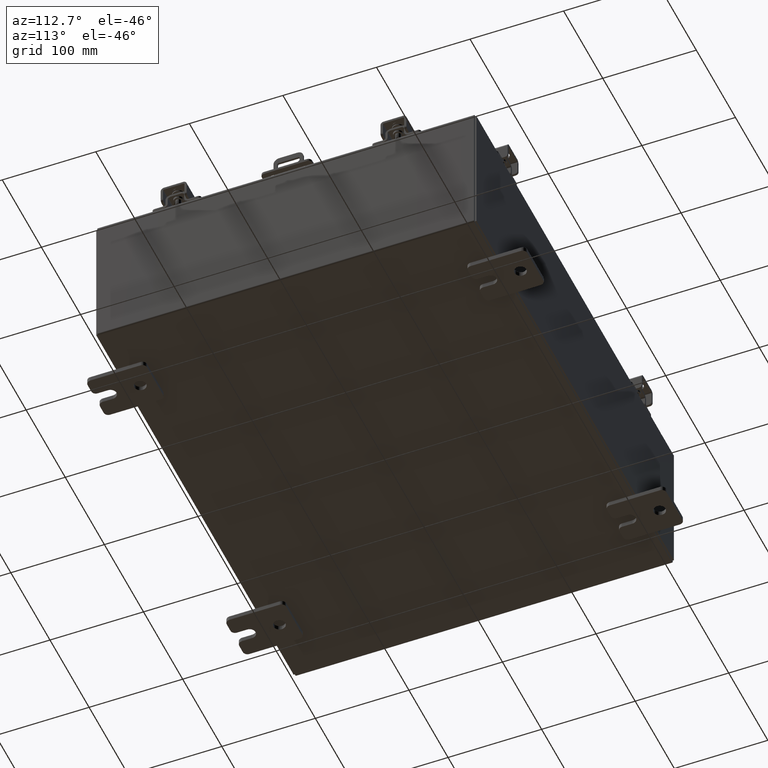
[diagram: clean part render]
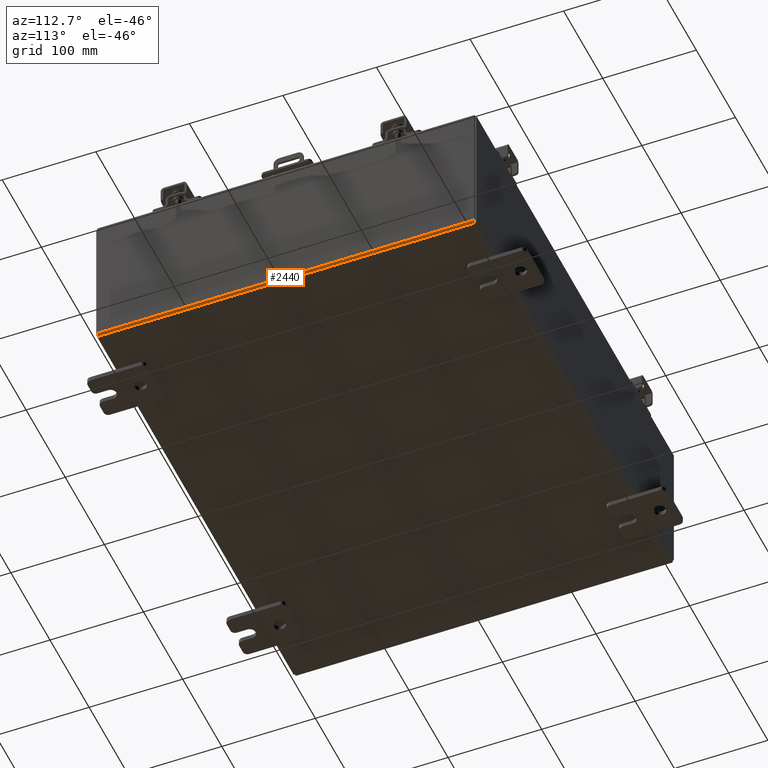
[diagram: same view with one face highlighted and labeled with its STEP entity id]
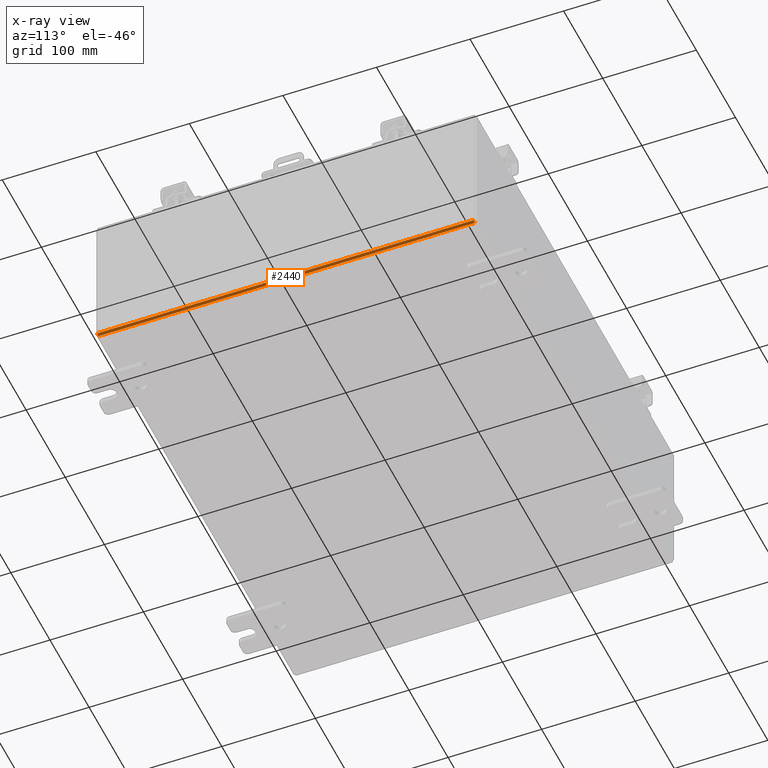
[diagram: x-ray of the same camera — body ghosted, the highlighted face saturated]
A machine part, auxiliary view. The second image highlights one B-rep face of the part: STEP entity #2440.
The next image is the same camera in x-ray: the body ghosted, the highlighted face saturated — about 0% of this face is hidden behind the body in this view.
In plain terms, the highlighted cylindrical surface (edge-blend (fillet) strip) has radius 2.2276 mm, axis along (0, 1, 0).
Its self-contained STEP definition (entity closure, byte-faithful):
#58 = CARTESIAN_POINT ( 'NONE',  ( 9.912300000000000100, 7.925300000000000000, -0.07469999999999994700 ) ) ;
#274 = DIRECTION ( 'NONE',  ( 0.0000000000000000000, 1.000000000000000000, 0.0000000000000000000 ) ) ;
#349 = CARTESIAN_POINT ( 'NONE',  ( 10.00000000000000000, -7.925300000000000000, 0.01299999999999985900 ) ) ;
#860 = VECTOR ( 'NONE', #15433, 39.37007874015748100 ) ;
#1742 = EDGE_LOOP ( 'NONE', ( #8022, #10540, #5606, #18642 ) ) ;
#1798 = LINE ( 'NONE', #3296, #14195 ) ;
#2440 = ADVANCED_FACE ( 'NONE', ( #14347 ), #11033, .T. ) ;
#2951 = DIRECTION ( 'NONE',  ( -0.0000000000000000000, -1.000000000000000000, -0.0000000000000000000 ) ) ;
#3296 = CARTESIAN_POINT ( 'NONE',  ( 9.912300000000000100, 7.925300000000000000, -0.07469999999999994700 ) ) ;
#3664 = DIRECTION ( 'NONE',  ( 0.0000000000000000000, 1.000000000000000000, 0.0000000000000000000 ) ) ;
#4940 = DIRECTION ( 'NONE',  ( -0.0000000000000000000, -1.000000000000000000, -0.0000000000000000000 ) ) ;
#5606 = ORIENTED_EDGE ( 'NONE', *, *, #11040, .T. ) ;
#6589 = CIRCLE ( 'NONE', #9951, 0.08770000000000009700 ) ;
#6657 = CARTESIAN_POINT ( 'NONE',  ( 9.912300000000000100, 7.925300000000000000, 0.01300000000000015000 ) ) ;
#8022 = ORIENTED_EDGE ( 'NONE', *, *, #13208, .F. ) ;
#8046 = EDGE_CURVE ( 'NONE', #19647, #9011, #6589, .T. ) ;
#9011 = VERTEX_POINT ( 'NONE', #349 ) ;
#9586 = VERTEX_POINT ( 'NONE', #58 ) ;
#9951 = AXIS2_PLACEMENT_3D ( 'NONE', #12663, #2951, #14287 ) ;
#10333 = CARTESIAN_POINT ( 'NONE',  ( 10.00000000000000000, 7.925300000000000000, 0.01299999999999986400 ) ) ;
#10540 = ORIENTED_EDGE ( 'NONE', *, *, #17440, .F. ) ;
#10767 = CIRCLE ( 'NONE', #11031, 0.08770000000000009700 ) ;
#11031 = AXIS2_PLACEMENT_3D ( 'NONE', #13372, #3664, #14978 ) ;
#11033 = CYLINDRICAL_SURFACE ( 'NONE', #11317, 0.08770000000000026400 ) ;
#11040 = EDGE_CURVE ( 'NONE', #18322, #9011, #12723, .T. ) ;
#11317 = AXIS2_PLACEMENT_3D ( 'NONE', #6657, #274, #11518 ) ;
#11518 = DIRECTION ( 'NONE',  ( 1.000000000000000000, 0.0000000000000000000, -3.309679011708404900E-015 ) ) ;
#12663 = CARTESIAN_POINT ( 'NONE',  ( 9.912300000000000100, -7.925300000000000000, 0.01300000000000015000 ) ) ;
#12723 = LINE ( 'NONE', #13881, #860 ) ;
#13208 = EDGE_CURVE ( 'NONE', #9586, #19647, #1798, .T. ) ;
#13372 = CARTESIAN_POINT ( 'NONE',  ( 9.912300000000000100, 7.925300000000000000, 0.01300000000000015000 ) ) ;
#13881 = CARTESIAN_POINT ( 'NONE',  ( 10.00000000000000000, -7.925300000000000000, 0.01299999999999986400 ) ) ;
#14195 = VECTOR ( 'NONE', #4940, 39.37007874015748100 ) ;
#14287 = DIRECTION ( 'NONE',  ( 0.0000000000000000000, 0.0000000000000000000, 1.000000000000000000 ) ) ;
#14347 = FACE_OUTER_BOUND ( 'NONE', #1742, .T. ) ;
#14978 = DIRECTION ( 'NONE',  ( 0.0000000000000000000, 0.0000000000000000000, 1.000000000000000000 ) ) ;
#15433 = DIRECTION ( 'NONE',  ( -0.0000000000000000000, -1.000000000000000000, -0.0000000000000000000 ) ) ;
#17440 = EDGE_CURVE ( 'NONE', #18322, #9586, #10767, .T. ) ;
#18322 = VERTEX_POINT ( 'NONE', #10333 ) ;
#18642 = ORIENTED_EDGE ( 'NONE', *, *, #8046, .F. ) ;
#19647 = VERTEX_POINT ( 'NONE', #20643 ) ;
#20643 = CARTESIAN_POINT ( 'NONE',  ( 9.912300000000000100, -7.925300000000000000, -0.07470000000000000300 ) ) ;